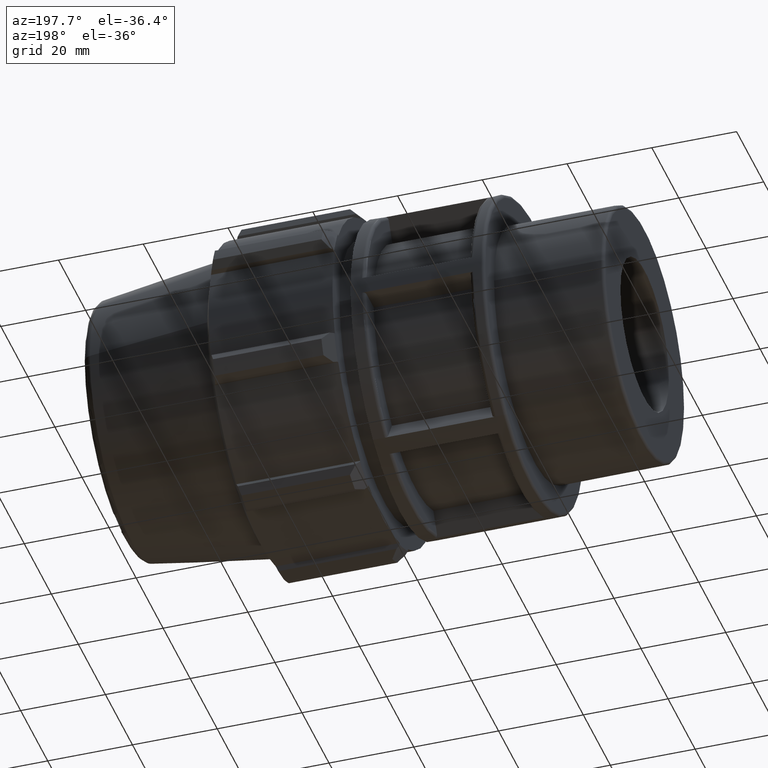
[diagram: clean part render]
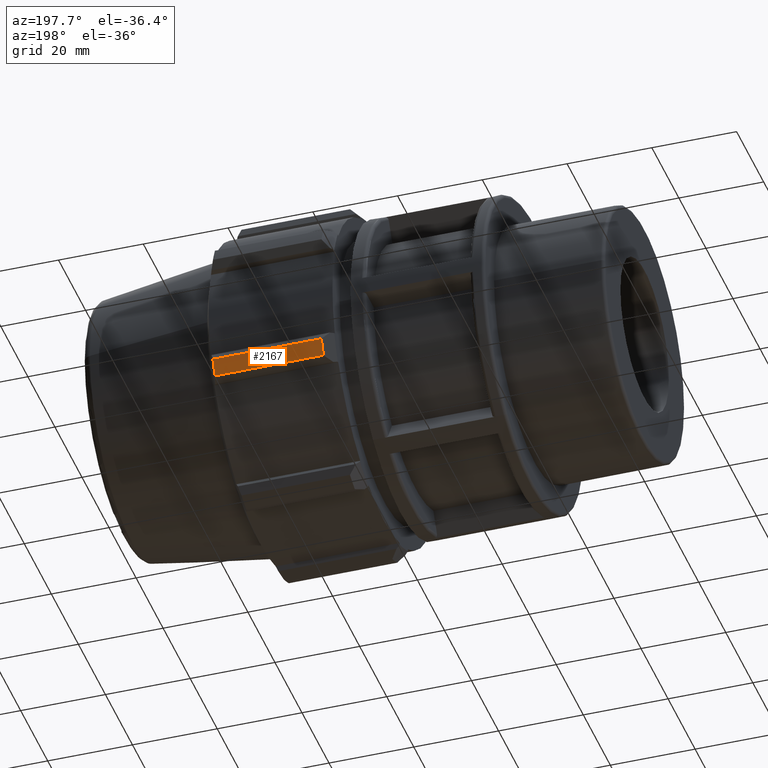
[diagram: same view with one face highlighted and labeled with its STEP entity id]
A machine part, auxiliary view. The second image highlights one B-rep face of the part: STEP entity #2167.
In plain terms, the highlighted cylindrical surface (partial cylindrical patch) has radius 41 mm, axis along (1, 0, 0).
Its self-contained STEP definition (entity closure, byte-faithful):
#155=LINE('',#3626,#299);
#169=LINE('',#3700,#313);
#299=VECTOR('',#2744,25.5917636436946);
#313=VECTOR('',#2790,25.5917636436946);
#394=CYLINDRICAL_SURFACE('',#2379,41.);
#597=FACE_OUTER_BOUND('',#735,.T.);
#735=EDGE_LOOP('',(#1910,#1911,#1912,#1913));
#809=CIRCLE('',#2301,41.);
#831=CIRCLE('',#2337,41.);
#986=VERTEX_POINT('',#3606);
#987=VERTEX_POINT('',#3610);
#991=VERTEX_POINT('',#3625);
#1011=VERTEX_POINT('',#3696);
#1237=EDGE_CURVE('',#986,#987,#809,.T.);
#1244=EDGE_CURVE('',#987,#991,#155,.T.);
#1272=EDGE_CURVE('',#1011,#986,#169,.T.);
#1304=EDGE_CURVE('',#991,#1011,#831,.T.);
#1910=ORIENTED_EDGE('',*,*,#1237,.F.);
#1911=ORIENTED_EDGE('',*,*,#1272,.F.);
#1912=ORIENTED_EDGE('',*,*,#1304,.F.);
#1913=ORIENTED_EDGE('',*,*,#1244,.F.);
#2167=ADVANCED_FACE('',(#597),#394,.T.);
#2301=AXIS2_PLACEMENT_3D('',#3611,#2733,#2734);
#2337=AXIS2_PLACEMENT_3D('',#3770,#2834,#2835);
#2379=AXIS2_PLACEMENT_3D('',#3840,#2941,#2942);
#2733=DIRECTION('center_axis',(-1.,0.,0.));
#2734=DIRECTION('ref_axis',(0.,1.,0.));
#2744=DIRECTION('',(1.,0.,0.));
#2790=DIRECTION('',(-1.,0.,0.));
#2834=DIRECTION('center_axis',(1.,0.,0.));
#2835=DIRECTION('ref_axis',(0.,0.,-1.));
#2941=DIRECTION('center_axis',(1.,0.,0.));
#2942=DIRECTION('ref_axis',(0.,1.,0.));
#3606=CARTESIAN_POINT('',(63.96,38.5780541948731,-13.8828575782305));
#3610=CARTESIAN_POINT('',(63.96,37.0954664619908,-17.4621409903631));
#3611=CARTESIAN_POINT('Origin',(63.96,0.,0.));
#3625=CARTESIAN_POINT('',(89.5517636436946,37.0954664619908,-17.4621409903631));
#3626=CARTESIAN_POINT('',(75.5258818218473,37.0954664619908,-17.4621409903631));
#3696=CARTESIAN_POINT('',(89.5517636436946,38.5780541948731,-13.8828575782305));
#3700=CARTESIAN_POINT('',(75.5258818218473,38.5780541948731,-13.8828575782305));
#3770=CARTESIAN_POINT('Origin',(89.5517636436946,0.,0.));
#3840=CARTESIAN_POINT('Origin',(75.5258818218473,0.,0.));